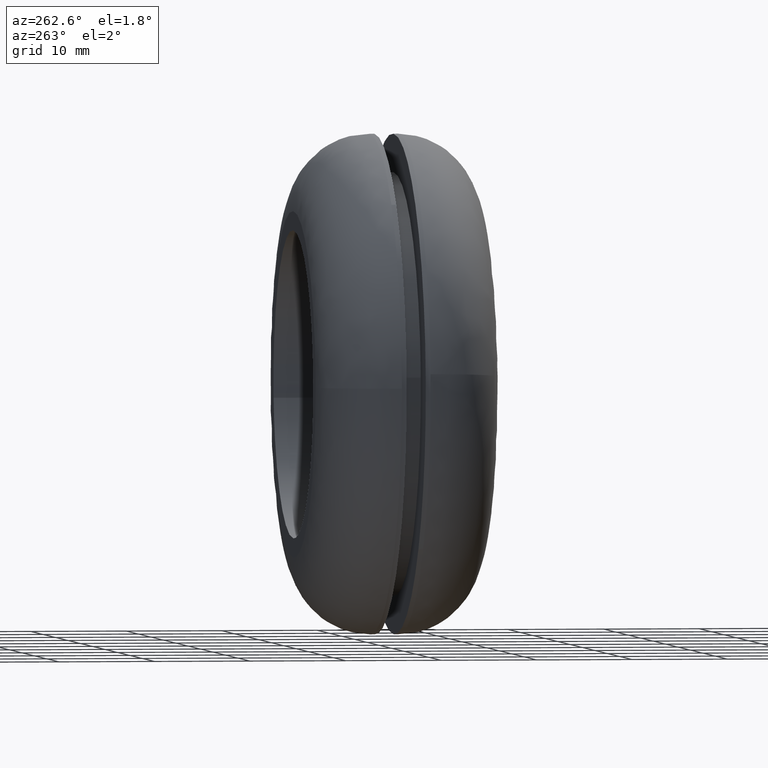
[diagram: clean part render]
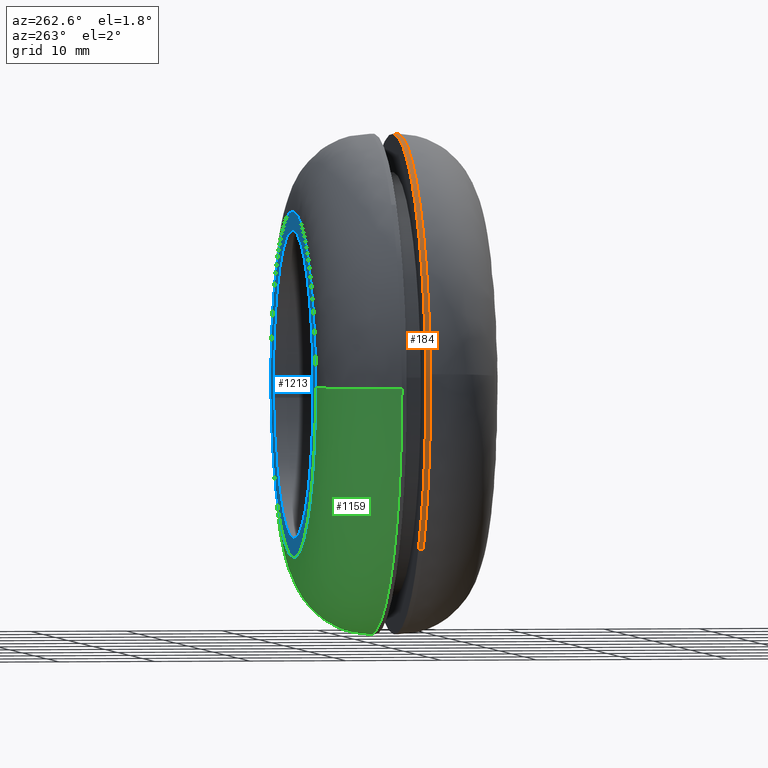
[diagram: same view with three faces highlighted in distinct colors, each labeled with its STEP entity id]
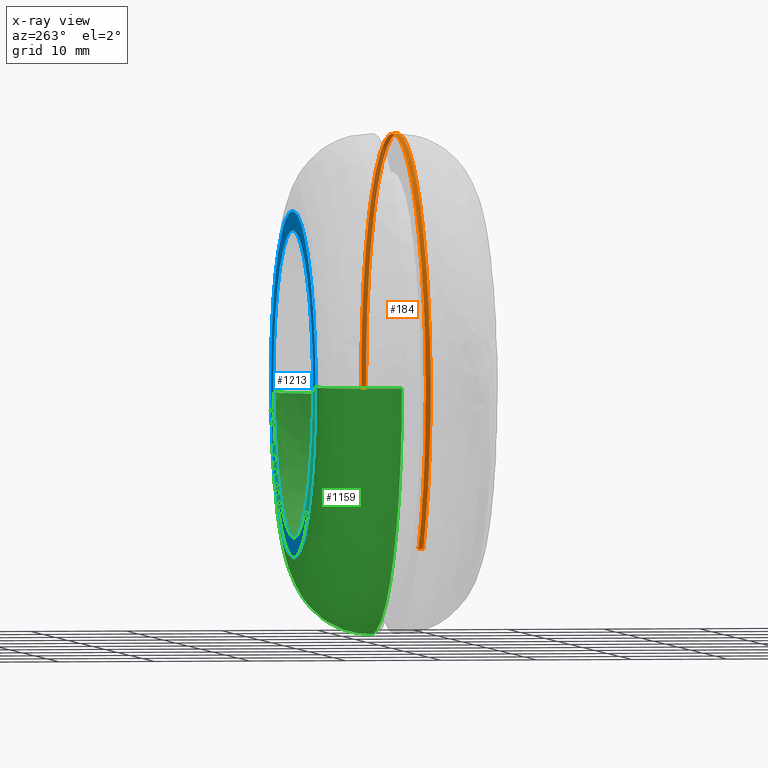
[diagram: x-ray of the same camera — body ghosted, the three highlighted faces saturated]
A machine part, auxiliary view with three faces highlighted in distinct colors.
The next image is the same camera in x-ray (body ghosted, the three faces saturated) — at least one of them is partly hidden behind the body in this view.
Their STEP definitions:

[orange] entity #184 — the highlighted face is a freeform B-spline surface patch.
#44=CARTESIAN_POINT('',(14.110950399751822,8.512500000000001,-21.837606984643337));
#45=CARTESIAN_POINT('',(15.375911889850876,8.512500000000001,-21.020218483378695));
#46=CARTESIAN_POINT('',(16.538033727221858,8.512500000000001,-20.062239168080708));
#47=CARTESIAN_POINT('',(36.600272895302567,8.512500000000001,-3.524205440858857));
#48=CARTESIAN_POINT('',(20.062239168080708,8.512500000000001,16.538033727221858));
#49=CARTESIAN_POINT('',(3.524205440858857,8.512500000000001,36.600272895302567));
#50=CARTESIAN_POINT('',(-16.538033727221858,8.512500000000001,20.062239168080708));
#51=CARTESIAN_POINT('',(-36.600272895302567,8.512500000000001,3.524205440858857));
#52=CARTESIAN_POINT('',(-20.062239168080708,8.512500000000001,-16.538033727221858));
#53=CARTESIAN_POINT('',(14.110950399751822,7.987187500000000,-21.837606984643337));
#54=CARTESIAN_POINT('',(15.375911889850876,7.987187500000001,-21.020218483378695));
#55=CARTESIAN_POINT('',(16.538033727221858,7.987187500000000,-20.062239168080708));
#56=CARTESIAN_POINT('',(36.600272895302567,7.987187500000001,-3.524205440858857));
#57=CARTESIAN_POINT('',(20.062239168080708,7.987187500000000,16.538033727221858));
#58=CARTESIAN_POINT('',(3.524205440858857,7.987187500000001,36.600272895302567));
#59=CARTESIAN_POINT('',(-16.538033727221858,7.987187500000000,20.062239168080708));
#60=CARTESIAN_POINT('',(-36.600272895302567,7.987187500000001,3.524205440858857));
#61=CARTESIAN_POINT('',(-20.062239168080708,7.987187500000000,-16.538033727221858));
#69=(BOUNDED_SURFACE()B_SPLINE_SURFACE(2,1,((#44,#53),(#45,#54),(#46,#55),(#47,#56),(#48,#57),(#49,#58),(#50,#59),(#51,#60),(#52,#61)),.UNSPECIFIED.,.F.,.F.,.U.)B_SPLINE_SURFACE_WITH_KNOTS((3,2,2,2,3),(2,2),(0.0,3.446256838944148,46.524467325746024,89.602677812547896,132.680888299349790),(0.0,1.0),.UNSPECIFIED.)GEOMETRIC_REPRESENTATION_ITEM()RATIONAL_B_SPLINE_SURFACE(((0.956886118190660,0.956886118190660),(0.976568542494924,0.976568542494924),(1.0,1.0),(0.707106781186548,0.707106781186548),(1.0,1.0),(0.707106781186548,0.707106781186548),(1.0,1.0),(0.707106781186548,0.707106781186548),(1.0,1.0)))REPRESENTATION_ITEM('')SURFACE());
#70=CARTESIAN_POINT('',(14.110946435018411,8.000000458614480,-21.837609546559520));
#71=VERTEX_POINT('',#70);
#72=CARTESIAN_POINT('',(25.997947368482730,8.000001292449309,-0.326699594867344));
#73=VERTEX_POINT('',#72);
#74=CARTESIAN_POINT('',(14.110946435018413,8.000000458614480,-21.837609546559523));
#75=CARTESIAN_POINT('',(25.822734219977335,8.000000941488212,-14.269729475274101));
#76=CARTESIAN_POINT('',(25.997947368482727,8.000001292449310,-0.326699594867343));
#84=(BOUNDED_CURVE()B_SPLINE_CURVE(2,(#74,#75,#76),.UNSPECIFIED.,.F.,.U.)B_SPLINE_CURVE_WITH_KNOTS((3,3),(0.092934715241405,0.247784413911472),.UNSPECIFIED.)CURVE()GEOMETRIC_REPRESENTATION_ITEM()RATIONAL_B_SPLINE_CURVE((0.863190116290633,0.816652432885149,0.994854567210753))REPRESENTATION_ITEM(''));
#85=EDGE_CURVE('',#71,#73,#84,.T.);
#86=ORIENTED_EDGE('',*,*,#85,.F.);
#87=CARTESIAN_POINT('',(14.110946463271020,8.500000000000000,-21.837609528304078));
#88=VERTEX_POINT('',#87);
#89=CARTESIAN_POINT('',(14.110946463271020,8.500000000000000,-21.837609528304078));
#90=CARTESIAN_POINT('',(14.110946435018411,8.000000458614480,-21.837609546559520));
#91=QUASI_UNIFORM_CURVE('',1,(#89,#90),.UNSPECIFIED.,.F.,.U.);
#92=EDGE_CURVE('',#88,#71,#91,.T.);
#93=ORIENTED_EDGE('',*,*,#92,.F.);
#94=CARTESIAN_POINT('',(0.0,8.500000000000000,26.0));
#95=VERTEX_POINT('',#94);
#96=CARTESIAN_POINT('',(14.110946463271013,8.500000000000000,-21.837609528304075));
#97=CARTESIAN_POINT('',(26.0,8.499999999999998,-14.155184501961770));
#98=CARTESIAN_POINT('',(26.0,8.500000000000000,-3.673819E-016));
#99=CARTESIAN_POINT('',(26.000000000000007,8.500000000000000,26.000000000000007));
#100=CARTESIAN_POINT('',(0.0,8.500000000000000,26.0));
#108=(BOUNDED_CURVE()B_SPLINE_CURVE(2,(#96,#97,#98,#99,#100),.UNSPECIFIED.,.F.,.U.)B_SPLINE_CURVE_WITH_KNOTS((3,2,3),(0.092934715438809,0.250000000000000,0.500000000000000),.UNSPECIFIED.)CURVE()GEOMETRIC_REPRESENTATION_ITEM()RATIONAL_B_SPLINE_CURVE((0.863190116171979,0.815986572964088,1.0,0.707106781186547,1.0))REPRESENTATION_ITEM(''));
#109=EDGE_CURVE('',#88,#95,#108,.T.);
#110=ORIENTED_EDGE('',*,*,#109,.T.);
#111=CARTESIAN_POINT('',(-20.062241183499570,8.500000000000000,-16.538031282322681));
#112=VERTEX_POINT('',#111);
#113=CARTESIAN_POINT('',(0.0,8.500000000000000,26.0));
#114=CARTESIAN_POINT('',(-26.000000000000007,8.500000000000000,26.000000000000007));
#115=CARTESIAN_POINT('',(-26.0,8.500000000000000,-3.673819E-016));
#116=CARTESIAN_POINT('',(-26.0,8.500000000000000,-9.334952062524092));
#117=CARTESIAN_POINT('',(-20.062241183499573,8.500000000000002,-16.538031282322677));
#125=(BOUNDED_CURVE()B_SPLINE_CURVE(2,(#113,#114,#115,#116,#117),.UNSPECIFIED.,.F.,.U.)B_SPLINE_CURVE_WITH_KNOTS((3,2,3),(0.500000000000000,0.750000000000000,0.860504607429005),.UNSPECIFIED.)CURVE()GEOMETRIC_REPRESENTATION_ITEM()RATIONAL_B_SPLINE_CURVE((1.0,0.707106781186547,1.0,0.870535799345607,0.855522724046603))REPRESENTATION_ITEM(''));
#126=EDGE_CURVE('',#95,#112,#125,.T.);
#127=ORIENTED_EDGE('',*,*,#126,.T.);
#128=CARTESIAN_POINT('',(-20.062241237377869,8.000000601774200,-16.538031216962938));
#129=VERTEX_POINT('',#128);
#130=CARTESIAN_POINT('',(-20.062241183499570,8.500000000000000,-16.538031282322681));
#131=CARTESIAN_POINT('',(-20.062241237377869,8.000000601774200,-16.538031216962938));
#132=QUASI_UNIFORM_CURVE('',1,(#130,#131),.UNSPECIFIED.,.F.,.U.);
#133=EDGE_CURVE('',#112,#129,#132,.T.);
#134=ORIENTED_EDGE('',*,*,#133,.T.);
#135=CARTESIAN_POINT('',(-25.936707732659510,8.000001110807867,1.813061496635619));
#136=VERTEX_POINT('',#135);
#137=CARTESIAN_POINT('',(-25.936707732659517,8.000001110807867,1.813061496635619));
#138=CARTESIAN_POINT('',(-25.999999999999666,8.000001092727255,0.907635485005569));
#139=CARTESIAN_POINT('',(-25.999999999999680,8.000001073338627,-3.426702E-014));
#140=CARTESIAN_POINT('',(-25.999999999999741,8.000000873928279,-9.334952014712572));
#141=CARTESIAN_POINT('',(-20.062241237377872,8.000000601774200,-16.538031216962942));
#149=(BOUNDED_CURVE()B_SPLINE_CURVE(2,(#137,#138,#139,#140,#141),.UNSPECIFIED.,.F.,.U.)B_SPLINE_CURVE_WITH_KNOTS((3,2,3),(0.737833706721611,0.750000000000000,0.860504606936299),.UNSPECIFIED.)CURVE()GEOMETRIC_REPRESENTATION_ITEM()RATIONAL_B_SPLINE_CURVE((0.972879919083209,0.985746300802657,1.0,0.870535799922847,0.855522724180480))REPRESENTATION_ITEM(''));
#150=EDGE_CURVE('',#136,#129,#149,.T.);
#151=ORIENTED_EDGE('',*,*,#150,.F.);
#152=CARTESIAN_POINT('',(0.0,8.0,26.0));
#153=VERTEX_POINT('',#152);
#154=CARTESIAN_POINT('',(0.0,8.0,26.0));
#155=CARTESIAN_POINT('',(-24.245960881750577,8.000000555403934,25.999999999999975));
#156=CARTESIAN_POINT('',(-25.936707732659517,8.000001110807867,1.813061496635619));
#164=(BOUNDED_CURVE()B_SPLINE_CURVE(2,(#154,#155,#156),.UNSPECIFIED.,.F.,.U.)B_SPLINE_CURVE_WITH_KNOTS((3,3),(0.500000000000000,0.737833706721611),.UNSPECIFIED.)CURVE()GEOMETRIC_REPRESENTATION_ITEM()RATIONAL_B_SPLINE_CURVE((1.0,0.721360480383890,0.972879919083209))REPRESENTATION_ITEM(''));
#165=EDGE_CURVE('',#153,#136,#164,.T.);
#166=ORIENTED_EDGE('',*,*,#165,.F.);
#167=CARTESIAN_POINT('',(25.997947368482727,8.000001292449310,-0.326699594867343));
#168=CARTESIAN_POINT('',(25.999999999993950,8.000001288439826,-0.163356245706277));
#169=CARTESIAN_POINT('',(25.999999999993971,8.000001284379637,7.702849E-014));
#170=CARTESIAN_POINT('',(25.999999999997012,8.000000638154983,26.000000000000036));
#171=CARTESIAN_POINT('',(0.0,8.0,26.0));
#179=(BOUNDED_CURVE()B_SPLINE_CURVE(2,(#167,#168,#169,#170,#171),.UNSPECIFIED.,.F.,.U.)B_SPLINE_CURVE_WITH_KNOTS((3,2,3),(0.247784413911472,0.250000000000000,0.500000000000000),.UNSPECIFIED.)CURVE()GEOMETRIC_REPRESENTATION_ITEM()RATIONAL_B_SPLINE_CURVE((0.994854567210753,0.997404279435891,1.0,0.707106781186547,1.0))REPRESENTATION_ITEM(''));
#180=EDGE_CURVE('',#73,#153,#179,.T.);
#181=ORIENTED_EDGE('',*,*,#180,.F.);
#182=EDGE_LOOP('',(#86,#93,#110,#127,#134,#151,#166,#181));
#183=FACE_OUTER_BOUND('',#182,.T.);
#184=ADVANCED_FACE('',(#183),#69,.T.);

[blue] entity #1213 — the highlighted face is a freeform B-spline surface patch.
#684=CARTESIAN_POINT('',(15.888154890393080,18.999999999999961,-1.888526986421135));
#685=VERTEX_POINT('',#684);
#686=CARTESIAN_POINT('',(0.0,19.0,16.0));
#687=VERTEX_POINT('',#686);
#688=CARTESIAN_POINT('',(15.888154890393078,18.999999999999961,-1.888526986421135));
#689=CARTESIAN_POINT('',(16.000000000000007,19.0,-0.947575420610316));
#690=CARTESIAN_POINT('',(16.0,19.0,-3.673819E-016));
#691=CARTESIAN_POINT('',(15.999999999999998,18.999999999999993,15.999999999999998));
#692=CARTESIAN_POINT('',(0.0,19.0,16.0));
#700=(BOUNDED_CURVE()B_SPLINE_CURVE(2,(#688,#689,#690,#691,#692),.UNSPECIFIED.,.F.,.U.)B_SPLINE_CURVE_WITH_KNOTS((3,2,3),(0.229562694427073,0.250000000000000,0.500000000000000),.UNSPECIFIED.)CURVE()GEOMETRIC_REPRESENTATION_ITEM()RATIONAL_B_SPLINE_CURVE((0.956027187183784,0.976056207147485,1.0,0.707106781186548,1.0))REPRESENTATION_ITEM(''));
#701=EDGE_CURVE('',#685,#687,#700,.T.);
#742=CARTESIAN_POINT('',(-15.970157005703809,18.999999999999989,0.976772856479495));
#743=VERTEX_POINT('',#742);
#749=CARTESIAN_POINT('',(0.0,19.0,16.0));
#750=CARTESIAN_POINT('',(-15.051300635959381,19.0,16.000000000000004));
#751=CARTESIAN_POINT('',(-15.970157005703813,18.999999999999996,0.976772856479495));
#759=(BOUNDED_CURVE()B_SPLINE_CURVE(2,(#749,#750,#751),.UNSPECIFIED.,.F.,.U.)B_SPLINE_CURVE_WITH_KNOTS((3,3),(0.500000000000000,0.739333003039952),.UNSPECIFIED.)CURVE()GEOMETRIC_REPRESENTATION_ITEM()RATIONAL_B_SPLINE_CURVE((1.0,0.719603945485355,0.976072129111062))REPRESENTATION_ITEM(''));
#760=EDGE_CURVE('',#687,#743,#759,.T.);
#783=CARTESIAN_POINT('',(0.0,19.0,-16.0));
#784=VERTEX_POINT('',#783);
#785=CARTESIAN_POINT('',(0.0,19.0,-16.0));
#786=CARTESIAN_POINT('',(14.210811121533384,18.999999999999996,-16.000000000000004));
#787=CARTESIAN_POINT('',(15.888154890393078,18.999999999999961,-1.888526986421135));
#795=(BOUNDED_CURVE()B_SPLINE_CURVE(2,(#785,#786,#787),.UNSPECIFIED.,.F.,.U.)B_SPLINE_CURVE_WITH_KNOTS((3,3),(0.0,0.229562694427073),.UNSPECIFIED.)CURVE()GEOMETRIC_REPRESENTATION_ITEM()RATIONAL_B_SPLINE_CURVE((1.0,0.731050574039062,0.956027187183784))REPRESENTATION_ITEM(''));
#796=EDGE_CURVE('',#784,#685,#795,.T.);
#798=CARTESIAN_POINT('',(-15.970157005703813,18.999999999999996,0.976772856479495));
#799=CARTESIAN_POINT('',(-16.000000000000007,18.999999999999996,0.488842319444472));
#800=CARTESIAN_POINT('',(-16.0,19.0,-3.673819E-016));
#801=CARTESIAN_POINT('',(-15.999999999999998,18.999999999999993,-15.999999999999998));
#802=CARTESIAN_POINT('',(0.0,19.0,-16.0));
#810=(BOUNDED_CURVE()B_SPLINE_CURVE(2,(#798,#799,#800,#801,#802),.UNSPECIFIED.,.F.,.U.)B_SPLINE_CURVE_WITH_KNOTS((3,2,3),(0.739333003039952,0.750000000000000,1.0),.UNSPECIFIED.)CURVE()GEOMETRIC_REPRESENTATION_ITEM()RATIONAL_B_SPLINE_CURVE((0.976072129111062,0.987502835701193,1.0,0.707106781186548,1.0))REPRESENTATION_ITEM(''));
#811=EDGE_CURVE('',#743,#784,#810,.T.);
#1035=CARTESIAN_POINT('',(17.956182129285530,19.0,-1.255198528403280));
#1036=VERTEX_POINT('',#1035);
#1050=CARTESIAN_POINT('',(0.0,19.0,18.0));
#1051=VERTEX_POINT('',#1050);
#1052=CARTESIAN_POINT('',(17.956182129285533,19.0,-1.255198528403280));
#1053=CARTESIAN_POINT('',(18.000000000000007,18.999999999999993,-0.628364085779069));
#1054=CARTESIAN_POINT('',(18.0,19.0,-3.673819E-016));
#1055=CARTESIAN_POINT('',(18.000000000000007,18.999999999999996,18.000000000000007));
#1056=CARTESIAN_POINT('',(0.0,19.0,18.0));
#1064=(BOUNDED_CURVE()B_SPLINE_CURVE(2,(#1052,#1053,#1054,#1055,#1056),.UNSPECIFIED.,.F.,.U.)B_SPLINE_CURVE_WITH_KNOTS((3,2,3),(0.237833686534481,0.250000000000000,0.500000000000000),.UNSPECIFIED.)CURVE()GEOMETRIC_REPRESENTATION_ITEM()RATIONAL_B_SPLINE_CURVE((0.972879876385684,0.985746277151962,1.0,0.707106781186547,1.0))REPRESENTATION_ITEM(''));
#1065=EDGE_CURVE('',#1036,#1051,#1064,.T.);
#1067=CARTESIAN_POINT('',(-17.998578795695579,19.0,0.226188717903136));
#1068=VERTEX_POINT('',#1067);
#1069=CARTESIAN_POINT('',(0.0,19.0,18.0));
#1070=CARTESIAN_POINT('',(-17.775214738326817,19.000000000000007,18.000000000000004));
#1071=CARTESIAN_POINT('',(-17.998578795695582,19.0,0.226188717903136));
#1079=(BOUNDED_CURVE()B_SPLINE_CURVE(2,(#1069,#1070,#1071),.UNSPECIFIED.,.F.,.U.)B_SPLINE_CURVE_WITH_KNOTS((3,3),(0.500000000000000,0.747784295921680),.UNSPECIFIED.)CURVE()GEOMETRIC_REPRESENTATION_ITEM()RATIONAL_B_SPLINE_CURVE((1.0,0.709702639984296,0.994854295643902))REPRESENTATION_ITEM(''));
#1080=EDGE_CURVE('',#1051,#1068,#1079,.T.);
#1126=CARTESIAN_POINT('',(0.0,19.0,-18.0));
#1127=VERTEX_POINT('',#1126);
#1128=CARTESIAN_POINT('',(-17.998578795695579,18.999999999999996,0.226188717903136));
#1129=CARTESIAN_POINT('',(-18.000000000000007,18.999999999999996,0.113098823856473));
#1130=CARTESIAN_POINT('',(-18.0,19.0,-3.673819E-016));
#1131=CARTESIAN_POINT('',(-18.000000000000007,18.999999999999996,-18.000000000000007));
#1132=CARTESIAN_POINT('',(0.0,19.0,-18.0));
#1140=(BOUNDED_CURVE()B_SPLINE_CURVE(2,(#1128,#1129,#1130,#1131,#1132),.UNSPECIFIED.,.F.,.U.)B_SPLINE_CURVE_WITH_KNOTS((3,2,3),(0.747784295921680,0.750000000000000,1.0),.UNSPECIFIED.)CURVE()GEOMETRIC_REPRESENTATION_ITEM()RATIONAL_B_SPLINE_CURVE((0.994854295643902,0.997404141202251,1.0,0.707106781186547,1.0))REPRESENTATION_ITEM(''));
#1141=EDGE_CURVE('',#1068,#1127,#1140,.T.);
#1143=CARTESIAN_POINT('',(0.0,19.0,-18.0));
#1144=CARTESIAN_POINT('',(16.785663250735176,19.0,-17.999999999999996));
#1145=CARTESIAN_POINT('',(17.956182129285537,18.999999999999996,-1.255198528403280));
#1153=(BOUNDED_CURVE()B_SPLINE_CURVE(2,(#1143,#1144,#1145),.UNSPECIFIED.,.F.,.U.)B_SPLINE_CURVE_WITH_KNOTS((3,3),(0.0,0.237833686534481),.UNSPECIFIED.)CURVE()GEOMETRIC_REPRESENTATION_ITEM()RATIONAL_B_SPLINE_CURVE((1.0,0.721360504034585,0.972879876385683))REPRESENTATION_ITEM(''));
#1154=EDGE_CURVE('',#1127,#1036,#1153,.T.);
#1196=CARTESIAN_POINT('',(-19.796605510236521,19.0,19.798199930225010));
#1197=CARTESIAN_POINT('',(-19.796605510236521,19.0,-19.798200895820258));
#1198=CARTESIAN_POINT('',(19.795974015865539,19.0,19.798199930225010));
#1199=CARTESIAN_POINT('',(19.795974015865539,19.0,-19.798200895820258));
#1200=B_SPLINE_SURFACE_WITH_KNOTS('',1,1,((#1196,#1198),(#1197,#1199)),.UNSPECIFIED.,.F.,.F.,.U.,(2,2),(2,2),(0.0,39.596400826045269),(0.0,39.592579526102057),.UNSPECIFIED.);
#1201=ORIENTED_EDGE('',*,*,#1080,.F.);
#1202=ORIENTED_EDGE('',*,*,#1065,.F.);
#1203=ORIENTED_EDGE('',*,*,#1154,.F.);
#1204=ORIENTED_EDGE('',*,*,#1141,.F.);
#1205=EDGE_LOOP('',(#1201,#1202,#1203,#1204));
#1206=FACE_OUTER_BOUND('',#1205,.T.);
#1207=ORIENTED_EDGE('',*,*,#760,.T.);
#1208=ORIENTED_EDGE('',*,*,#811,.T.);
#1209=ORIENTED_EDGE('',*,*,#796,.T.);
#1210=ORIENTED_EDGE('',*,*,#701,.T.);
#1211=EDGE_LOOP('',(#1207,#1208,#1209,#1210));
#1212=FACE_BOUND('',#1211,.T.);
#1213=ADVANCED_FACE('',(#1206,#1212),#1200,.F.);

[green] entity #1159 — the highlighted face is a freeform B-spline surface patch.
#563=CARTESIAN_POINT('',(25.936707730010632,10.999992535873170,-1.813061534431493));
#564=VERTEX_POINT('',#563);
#614=CARTESIAN_POINT('',(-25.997947368348360,10.999992408155631,0.326699605003920));
#615=VERTEX_POINT('',#614);
#629=CARTESIAN_POINT('',(0.0,11.0,-26.0));
#630=VERTEX_POINT('',#629);
#631=CARTESIAN_POINT('',(-25.997947368348360,10.999992408155629,0.326699605003920));
#632=CARTESIAN_POINT('',(-25.999999999986986,10.999992431707335,0.163356250775127));
#633=CARTESIAN_POINT('',(-25.999999999987029,10.999992455556860,-1.544972E-013));
#634=CARTESIAN_POINT('',(-25.999999999993559,10.999996251479041,-26.000000000000082));
#635=CARTESIAN_POINT('',(0.0,11.0,-26.0));
#643=(BOUNDED_CURVE()B_SPLINE_CURVE(2,(#631,#632,#633,#634,#635),.UNSPECIFIED.,.F.,.U.)B_SPLINE_CURVE_WITH_KNOTS((3,2,3),(0.747784413842901,0.750000000000000,1.0),.UNSPECIFIED.)CURVE()GEOMETRIC_REPRESENTATION_ITEM()RATIONAL_B_SPLINE_CURVE((0.994854567052930,0.997404279355555,1.0,0.707106781186547,1.0))REPRESENTATION_ITEM(''));
#644=EDGE_CURVE('',#615,#630,#643,.T.);
#646=CARTESIAN_POINT('',(0.0,11.0,-26.0));
#647=CARTESIAN_POINT('',(24.245960846328479,10.999996267936584,-25.999999999999758));
#648=CARTESIAN_POINT('',(25.936707730010635,10.999992535873174,-1.813061534431493));
#656=(BOUNDED_CURVE()B_SPLINE_CURVE(2,(#646,#647,#648),.UNSPECIFIED.,.F.,.U.)B_SPLINE_CURVE_WITH_KNOTS((3,3),(0.0,0.237833706470990),.UNSPECIFIED.)CURVE()GEOMETRIC_REPRESENTATION_ITEM()RATIONAL_B_SPLINE_CURVE((1.0,0.721360480677512,0.972879918553122))REPRESENTATION_ITEM(''));
#657=EDGE_CURVE('',#630,#564,#656,.T.);
#1035=CARTESIAN_POINT('',(17.956182129285530,19.0,-1.255198528403280));
#1036=VERTEX_POINT('',#1035);
#1037=CARTESIAN_POINT('',(17.956182129285537,19.0,-1.255198528403281));
#1038=CARTESIAN_POINT('',(25.936715070811601,18.999999999678948,-1.813063558206155));
#1039=CARTESIAN_POINT('',(25.936707730010639,10.999992535873169,-1.813061534431493));
#1047=(BOUNDED_CURVE()B_SPLINE_CURVE(2,(#1037,#1038,#1039),.UNSPECIFIED.,.F.,.U.)B_SPLINE_CURVE_WITH_KNOTS((3,3),(-1.734750791616700,-0.265248238849737),.UNSPECIFIED.)CURVE()GEOMETRIC_REPRESENTATION_ITEM()RATIONAL_B_SPLINE_CURVE((0.869031711860814,0.614498048613945,0.869032047728338))REPRESENTATION_ITEM(''));
#1048=EDGE_CURVE('',#1036,#564,#1047,.T.);
#1067=CARTESIAN_POINT('',(-17.998578795695579,19.0,0.226188717903136));
#1068=VERTEX_POINT('',#1067);
#1082=CARTESIAN_POINT('',(-17.998578795695575,19.0,0.226188717903136));
#1083=CARTESIAN_POINT('',(-25.997954850060669,18.999999999946141,0.326708416386084));
#1084=CARTESIAN_POINT('',(-25.997947368348360,10.999992408155629,0.326699605003920));
#1092=(BOUNDED_CURVE()B_SPLINE_CURVE(2,(#1082,#1083,#1084),.UNSPECIFIED.,.F.,.U.)B_SPLINE_CURVE_WITH_KNOTS((3,3),(-1.734750791651407,-0.265248222260906),.UNSPECIFIED.)CURVE()GEOMETRIC_REPRESENTATION_ITEM()RATIONAL_B_SPLINE_CURVE((0.889029723573963,0.628638771488335,0.889030073037093))REPRESENTATION_ITEM(''));
#1093=EDGE_CURVE('',#1068,#615,#1092,.T.);
#1100=CARTESIAN_POINT('',(-17.442325562079233,18.980634904172629,0.219198265645082));
#1101=CARTESIAN_POINT('',(-17.661523827724320,18.980634904172629,-17.223127296434146));
#1102=CARTESIAN_POINT('',(-0.219198265645083,18.980634904172629,-17.442325562079233));
#1103=CARTESIAN_POINT('',(16.252521878773692,18.980634904172621,-17.649326198261452));
#1104=CARTESIAN_POINT('',(17.401239181373938,18.980634904172625,-1.216406118794818));
#1105=CARTESIAN_POINT('',(-26.618204680096959,19.620298112139093,0.334511833281452));
#1106=CARTESIAN_POINT('',(-26.952716513378416,19.620298112139096,-26.283692846815516));
#1107=CARTESIAN_POINT('',(-0.334511833281454,19.620298112139093,-26.618204680096959));
#1108=CARTESIAN_POINT('',(24.802481320351070,19.620298112139093,-26.934102080543827));
#1109=CARTESIAN_POINT('',(26.555503999084802,19.620298112139093,-1.856320530709271));
#1110=CARTESIAN_POINT('',(-25.978583040710532,10.443695071055572,0.326473687592475));
#1111=CARTESIAN_POINT('',(-26.305056728303004,10.443695071055574,-25.652109353118060));
#1112=CARTESIAN_POINT('',(-0.326473687592476,10.443695071055572,-25.978583040710532));
#1113=CARTESIAN_POINT('',(24.206490570650484,10.443695071055572,-26.286889590625581));
#1114=CARTESIAN_POINT('',(25.917389024511465,10.443695071055574,-1.811714112081542));
#1122=(BOUNDED_SURFACE()B_SPLINE_SURFACE(2,2,((#1100,#1105,#1110),(#1101,#1106,#1111),(#1102,#1107,#1112),(#1103,#1108,#1113),(#1104,#1109,#1114)),.UNSPECIFIED.,.F.,.F.,.U.)B_SPLINE_SURFACE_WITH_KNOTS((3,2,3),(3,3),(0.0,43.046124447820333,84.370403917727856),(0.0,14.579001387978590),.UNSPECIFIED.)GEOMETRIC_REPRESENTATION_ITEM()RATIONAL_B_SPLINE_SURFACE(((0.916342114969850,0.601326351528802,0.916342521560299),(0.647951723382004,0.425201940872182,0.647952010884867),(0.916342114969850,0.601326351528802,0.916342521560299),(0.658687339045518,0.432246917298447,0.658687631311885),(0.895729732895903,0.587799996790374,0.895730130340425)))REPRESENTATION_ITEM('')SURFACE());
#1123=ORIENTED_EDGE('',*,*,#657,.F.);
#1124=ORIENTED_EDGE('',*,*,#644,.F.);
#1125=ORIENTED_EDGE('',*,*,#1093,.F.);
#1126=CARTESIAN_POINT('',(0.0,19.0,-18.0));
#1127=VERTEX_POINT('',#1126);
#1128=CARTESIAN_POINT('',(-17.998578795695579,18.999999999999996,0.226188717903136));
#1129=CARTESIAN_POINT('',(-18.000000000000007,18.999999999999996,0.113098823856473));
#1130=CARTESIAN_POINT('',(-18.0,19.0,-3.673819E-016));
#1131=CARTESIAN_POINT('',(-18.000000000000007,18.999999999999996,-18.000000000000007));
#1132=CARTESIAN_POINT('',(0.0,19.0,-18.0));
#1140=(BOUNDED_CURVE()B_SPLINE_CURVE(2,(#1128,#1129,#1130,#1131,#1132),.UNSPECIFIED.,.F.,.U.)B_SPLINE_CURVE_WITH_KNOTS((3,2,3),(0.747784295921680,0.750000000000000,1.0),.UNSPECIFIED.)CURVE()GEOMETRIC_REPRESENTATION_ITEM()RATIONAL_B_SPLINE_CURVE((0.994854295643902,0.997404141202251,1.0,0.707106781186547,1.0))REPRESENTATION_ITEM(''));
#1141=EDGE_CURVE('',#1068,#1127,#1140,.T.);
#1142=ORIENTED_EDGE('',*,*,#1141,.T.);
#1143=CARTESIAN_POINT('',(0.0,19.0,-18.0));
#1144=CARTESIAN_POINT('',(16.785663250735176,19.0,-17.999999999999996));
#1145=CARTESIAN_POINT('',(17.956182129285537,18.999999999999996,-1.255198528403280));
#1153=(BOUNDED_CURVE()B_SPLINE_CURVE(2,(#1143,#1144,#1145),.UNSPECIFIED.,.F.,.U.)B_SPLINE_CURVE_WITH_KNOTS((3,3),(0.0,0.237833686534481),.UNSPECIFIED.)CURVE()GEOMETRIC_REPRESENTATION_ITEM()RATIONAL_B_SPLINE_CURVE((1.0,0.721360504034585,0.972879876385683))REPRESENTATION_ITEM(''));
#1154=EDGE_CURVE('',#1127,#1036,#1153,.T.);
#1155=ORIENTED_EDGE('',*,*,#1154,.T.);
#1156=ORIENTED_EDGE('',*,*,#1048,.T.);
#1157=EDGE_LOOP('',(#1123,#1124,#1125,#1142,#1155,#1156));
#1158=FACE_OUTER_BOUND('',#1157,.T.);
#1159=ADVANCED_FACE('',(#1158),#1122,.T.);